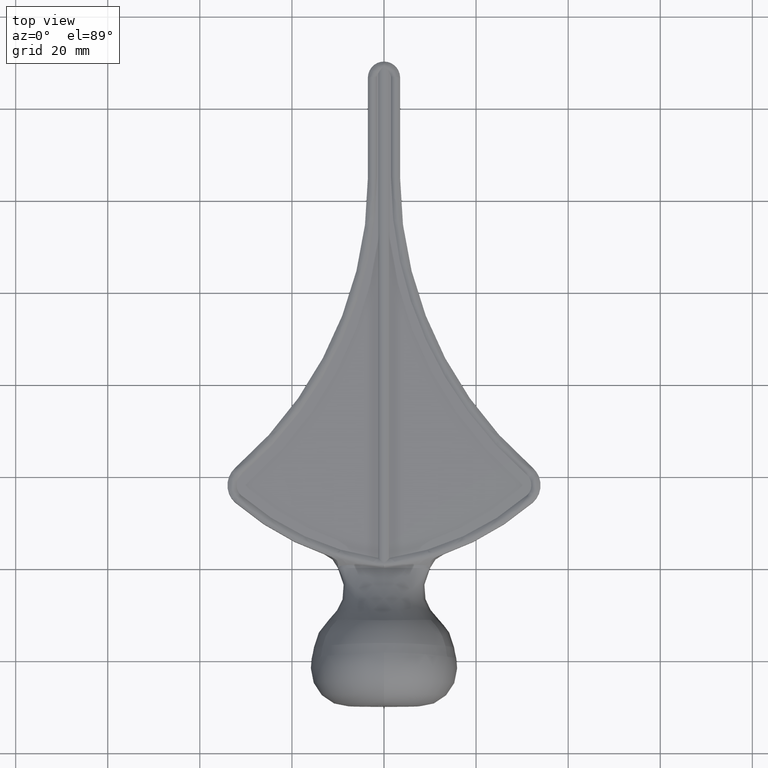
[diagram: clean part render]
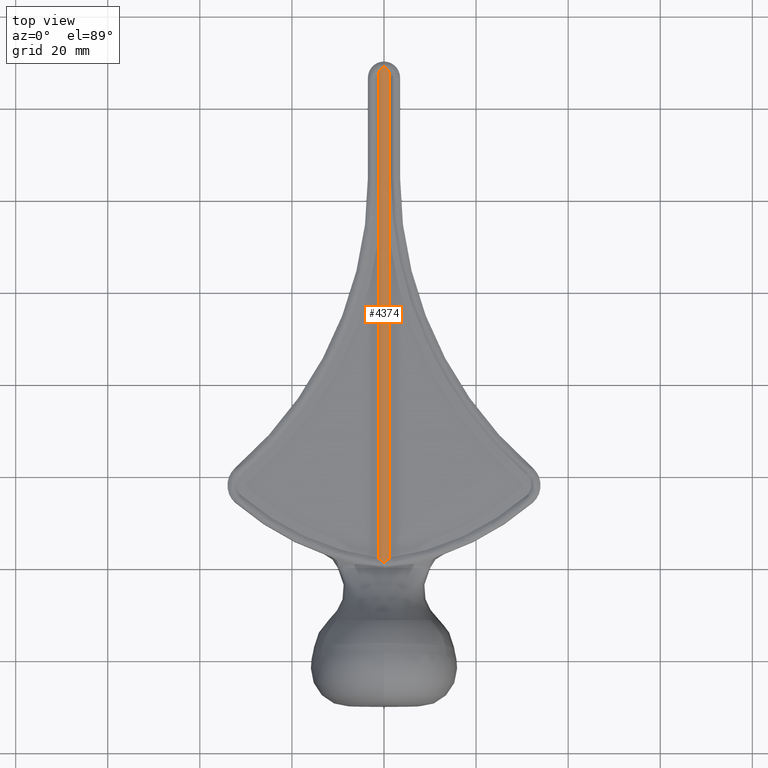
[diagram: same view with one face highlighted and labeled with its STEP entity id]
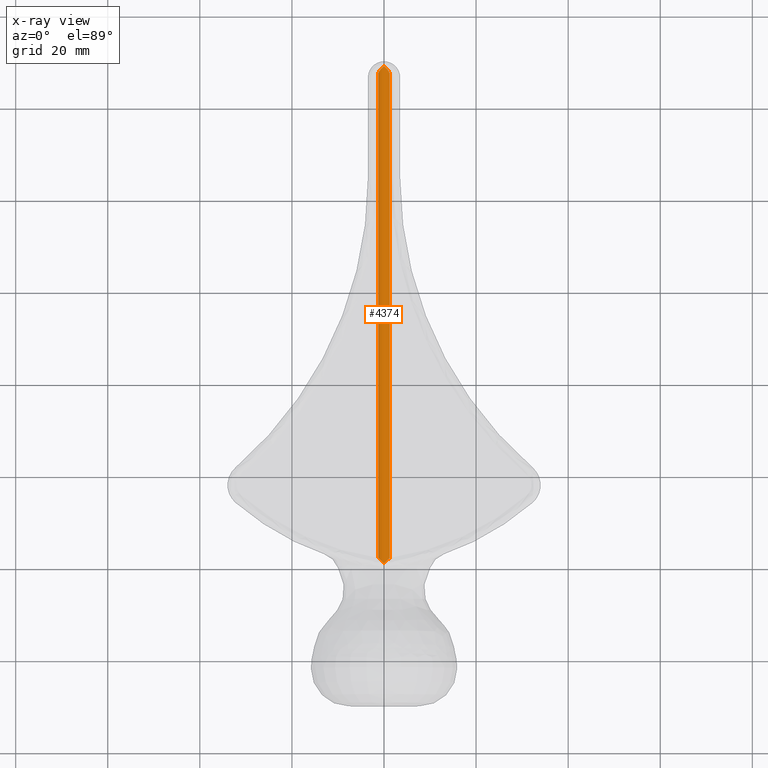
[diagram: x-ray of the same camera — body ghosted, the highlighted face saturated]
A machine part, top view. The second image highlights one B-rep face of the part: STEP entity #4374.
The next image is the same camera in x-ray: the body ghosted, the highlighted face saturated — about 0% of this face is hidden behind the body in this view.
In plain terms, the highlighted cylindrical surface (edge-blend (fillet) strip) has radius 1.8125 mm, axis along (0, -1, 0).
Its self-contained STEP definition (entity closure, byte-faithful):
#244 = CARTESIAN_POINT ( 'NONE',  ( 1.128133117391216134, 107.7021607522524960, 2.866063697722651238 ) ) ;
#631 = CARTESIAN_POINT ( 'NONE',  ( 1.249999999999996003, 2.165472974564840225, 2.750000000000000444 ) ) ;
#763 = CARTESIAN_POINT ( 'NONE',  ( -1.250000000000003997, 107.3847451469572150, 2.750000000000000444 ) ) ;
#835 = VERTEX_POINT ( 'NONE', #763 ) ;
#991 = CARTESIAN_POINT ( 'NONE',  ( -0.1383392793451222735, 108.8959721160313165, 3.250000000001583178 ) ) ;
#1099 = B_SPLINE_CURVE_WITH_KNOTS ( 'NONE', 3,
 ( #4152, #244, #11014, #10966, #7111, #2323, #5152, #9149 ),
 .UNSPECIFIED., .F., .F.,
 ( 4, 2, 2, 4 ),
 ( 0.000000000000000000, 0.001073788605063746284, 0.001610682907595603272, 0.002147577210127460477 ),
 .UNSPECIFIED. ) ;
#1569 = CARTESIAN_POINT ( 'NONE',  ( 0.2199225854740878283, 1.208878835922643225, 3.250000000000000888 ) ) ;
#1622 = CARTESIAN_POINT ( 'NONE',  ( 0.000000000000000000, 109.0095093121031056, 3.250000000000000444 ) ) ;
#1705 = AXIS2_PLACEMENT_3D ( 'NONE', #1757, #12308, #8585 ) ;
#1757 = CARTESIAN_POINT ( 'NONE',  ( 0.000000000000000000, 110.0020000000000095, 1.437500000000001110 ) ) ;
#1914 = CARTESIAN_POINT ( 'NONE',  ( -0.9529924543375385415, 107.9918562743145998, 2.996495310398257672 ) ) ;
#2323 = CARTESIAN_POINT ( 'NONE',  ( 0.2730295107570315238, 108.7743004603438948, 3.233838330702107466 ) ) ;
#2659 = ORIENTED_EDGE ( 'NONE', *, *, #3763, .F. ) ;
#2852 = ORIENTED_EDGE ( 'NONE', *, *, #11740, .T. ) ;
#3213 = EDGE_CURVE ( 'NONE', #10498, #4807, #3221, .T. ) ;
#3221 = LINE ( 'NONE', #11180, #8109 ) ;
#3278 = CARTESIAN_POINT ( 'NONE',  ( 0.000000000000000000, 0.9999999999999997780, 3.250000000000000888 ) ) ;
#3371 = ORIENTED_EDGE ( 'NONE', *, *, #3213, .F. ) ;
#3415 = EDGE_CURVE ( 'NONE', #12253, #5033, #4381, .T. ) ;
#3664 = ORIENTED_EDGE ( 'NONE', *, *, #7078, .T. ) ;
#3738 = LINE ( 'NONE', #4698, #4051 ) ;
#3763 = EDGE_CURVE ( 'NONE', #835, #7465, #5302, .T. ) ;
#3901 = CARTESIAN_POINT ( 'NONE',  ( -1.128133117391216134, 107.7021607522524960, 2.866063697722651238 ) ) ;
#3977 = CARTESIAN_POINT ( 'NONE',  ( -1.063103734140385948, 2.004780208914956230, 2.927996443675821236 ) ) ;
#3987 = CARTESIAN_POINT ( 'NONE',  ( -0.5215526331162044782, 108.5239021028995694, 3.178005490650174902 ) ) ;
#4051 = VECTOR ( 'NONE', #4571, 1000.000000000000000 ) ;
#4082 = FACE_OUTER_BOUND ( 'NONE', #12390, .T. ) ;
#4152 = CARTESIAN_POINT ( 'NONE',  ( 1.250000000000003997, 107.3847451469572150, 2.750000000000000444 ) ) ;
#4374 = ADVANCED_FACE ( 'NONE', ( #4082 ), #12307, .T. ) ;
#4381 = B_SPLINE_CURVE_WITH_KNOTS ( 'NONE', 3,
 ( #9828, #8733, #6790, #6903, #3977, #8852 ),
 .UNSPECIFIED., .F., .F.,
 ( 4, 2, 4 ),
 ( -0.001525334114933165350, -0.0006154080014554291073, 0.0002945181120223071356 ),
 .UNSPECIFIED. ) ;
#4571 = DIRECTION ( 'NONE',  ( 0.000000000000000000, -1.000000000000000000, 0.000000000000000000 ) ) ;
#4698 = CARTESIAN_POINT ( 'NONE',  ( -1.250000000000000000, 110.0020000000000095, 2.750000000000000888 ) ) ;
#4807 = VERTEX_POINT ( 'NONE', #5805 ) ;
#5033 = VERTEX_POINT ( 'NONE', #6012 ) ;
#5152 = CARTESIAN_POINT ( 'NONE',  ( 0.1383392793451222735, 108.8959721160313165, 3.250000000001583178 ) ) ;
#5302 = B_SPLINE_CURVE_WITH_KNOTS ( 'NONE', 3,
 ( #10677, #3901, #1914, #11766, #3987, #10799, #991, #7835 ),
 .UNSPECIFIED., .F., .F.,
 ( 4, 2, 2, 4 ),
 ( 0.000000000000000000, 0.001073788605063746284, 0.001610682907595603272, 0.002147577210127460477 ),
 .UNSPECIFIED. ) ;
#5379 = DIRECTION ( 'NONE',  ( 0.000000000000000000, -1.000000000000000000, 0.000000000000000000 ) ) ;
#5478 = ORIENTED_EDGE ( 'NONE', *, *, #3415, .F. ) ;
#5805 = CARTESIAN_POINT ( 'NONE',  ( 1.249999999999996003, 2.165472974564840225, 2.750000000000000444 ) ) ;
#6012 = CARTESIAN_POINT ( 'NONE',  ( -1.249999999999996003, 2.165472974564840225, 2.750000000000000444 ) ) ;
#6489 = CARTESIAN_POINT ( 'NONE',  ( 0.8551453791832692719, 1.811043936460383197, 3.051373538140398356 ) ) ;
#6604 = ORIENTED_EDGE ( 'NONE', *, *, #11868, .T. ) ;
#6790 = CARTESIAN_POINT ( 'NONE',  ( -0.4342412068582295892, 1.414016135089283699, 3.211562003120125741 ) ) ;
#6823 = B_SPLINE_CURVE_WITH_KNOTS ( 'NONE', 3,
 ( #12243, #1569, #9372, #6489, #12149, #631 ),
 .UNSPECIFIED., .F., .F.,
 ( 4, 2, 4 ),
 ( -0.001525334114933165350, -0.0006154080014554291073, 0.0002945181120223071356 ),
 .UNSPECIFIED. ) ;
#6903 = CARTESIAN_POINT ( 'NONE',  ( -0.8551453791832692719, 1.811043936460383197, 3.051373538140398356 ) ) ;
#7078 = EDGE_CURVE ( 'NONE', #835, #5033, #3738, .T. ) ;
#7111 = CARTESIAN_POINT ( 'NONE',  ( 0.5215526331162044782, 108.5239021028995694, 3.178005490650174902 ) ) ;
#7465 = VERTEX_POINT ( 'NONE', #1622 ) ;
#7835 = CARTESIAN_POINT ( 'NONE',  ( 0.000000000000000000, 109.0095093121031056, 3.250000000000000444 ) ) ;
#8109 = VECTOR ( 'NONE', #5379, 1000.000000000000000 ) ;
#8585 = DIRECTION ( 'NONE',  ( 0.000000000000000000, 0.000000000000000000, -1.000000000000000000 ) ) ;
#8733 = CARTESIAN_POINT ( 'NONE',  ( -0.2199225854740878283, 1.208878835922643225, 3.250000000000000888 ) ) ;
#8852 = CARTESIAN_POINT ( 'NONE',  ( -1.249999999999996003, 2.165472974564840225, 2.750000000000000444 ) ) ;
#9149 = CARTESIAN_POINT ( 'NONE',  ( 0.000000000000000000, 109.0095093121031056, 3.250000000000000444 ) ) ;
#9372 = CARTESIAN_POINT ( 'NONE',  ( 0.4342412068582295892, 1.414016135089283699, 3.211562003120125741 ) ) ;
#9828 = CARTESIAN_POINT ( 'NONE',  ( 0.000000000000000000, 0.9999999999999997780, 3.250000000000000888 ) ) ;
#10498 = VERTEX_POINT ( 'NONE', #11334 ) ;
#10677 = CARTESIAN_POINT ( 'NONE',  ( -1.250000000000003997, 107.3847451469572150, 2.750000000000000444 ) ) ;
#10799 = CARTESIAN_POINT ( 'NONE',  ( -0.2730295107570315238, 108.7743004603438948, 3.233838330702107466 ) ) ;
#10966 = CARTESIAN_POINT ( 'NONE',  ( 0.6364283941579446102, 108.3947376960156106, 3.138526553460160518 ) ) ;
#11014 = CARTESIAN_POINT ( 'NONE',  ( 0.9529924543375385415, 107.9918562743145998, 2.996495310398257672 ) ) ;
#11180 = CARTESIAN_POINT ( 'NONE',  ( 1.250000000000000000, 110.0020000000000095, 2.750000000000000888 ) ) ;
#11334 = CARTESIAN_POINT ( 'NONE',  ( 1.250000000000003997, 107.3847451469572150, 2.750000000000000444 ) ) ;
#11740 = EDGE_CURVE ( 'NONE', #10498, #7465, #1099, .T. ) ;
#11766 = CARTESIAN_POINT ( 'NONE',  ( -0.6364283941579446102, 108.3947376960156106, 3.138526553460160518 ) ) ;
#11868 = EDGE_CURVE ( 'NONE', #12253, #4807, #6823, .T. ) ;
#12149 = CARTESIAN_POINT ( 'NONE',  ( 1.063103734140385948, 2.004780208914956230, 2.927996443675821236 ) ) ;
#12243 = CARTESIAN_POINT ( 'NONE',  ( 0.000000000000000000, 0.9999999999999997780, 3.250000000000000888 ) ) ;
#12253 = VERTEX_POINT ( 'NONE', #3278 ) ;
#12307 = CYLINDRICAL_SURFACE ( 'NONE', #1705, 1.812499999999999556 ) ;
#12308 = DIRECTION ( 'NONE',  ( 0.000000000000000000, -1.000000000000000000, 0.000000000000000000 ) ) ;
#12390 = EDGE_LOOP ( 'NONE', ( #3371, #2852, #2659, #3664, #5478, #6604 ) ) ;